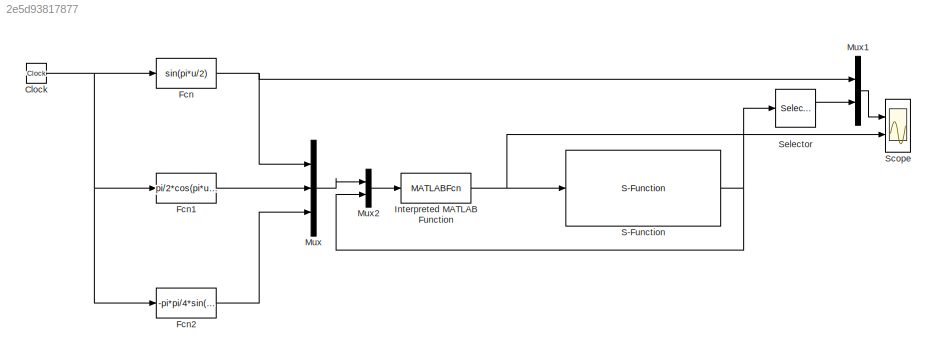
MODEL slx_2e5d93817877
KIND model
CONFIG AbsTol = auto
CONFIG EnableMultiTasking = off
CONFIG FixedStep = auto
CONFIG MaxStep = auto
CONFIG MinStep = auto
CONFIG RelTol = 1e-3
CONFIG SampleTimeConstraint = Unconstrained
CONFIG Solver = VariableStepAuto
CONFIG SolverName = VariableStepAuto
CONFIG StartTime = 0.0
CONFIG StopTime = 10.0
BLOCK [Clock] Clock
BLOCK [Fcn] Fcn
  Expr = sin(pi*u/2)
BLOCK [Fcn] Fcn1
  Expr = pi/2*cos(pi*u/2)
BLOCK [Fcn] Fcn2
  Expr = -pi*pi/4*sin(pi*u/2)
BLOCK [MATLABFcn] Interpreted MATLAB Function
  MATLABFcn = smc1
  Ports = [1, 1]
BLOCK [Mux] Mux
  DisplayOption = bar
  Inputs = 3
  Ports = [3, 1]
BLOCK [Mux] Mux1
  DisplayOption = bar
  Inputs = 2
  Ports = [2, 1]
BLOCK [Mux] Mux2
  DisplayOption = bar
  Inputs = 2
  Ports = [2, 1]
BLOCK [S-Function] S-Function
  EnableBusSupport = off
  FunctionName = dyn_1
  Ports = [1, 1]
  SFcnIsStateOwnerBlock = off
  SFunctionDeploymentMode = off
BLOCK [Scope] Scope
  Floating = off
  NumInputPorts = 2
  Ports = [2]
  ScopeSpecificationString = Simulink.scopes.TimeScopeBlockCfg('CurrentConfiguration', extmgr.ConfigurationSet(extmgr.Configuration('Core','General UI',true),extmgr.Configuration('Core','Source UI',true),extmgr.Configuration('Sources','WiredSimulink',true),extmgr.Configuration('Visuals','Time Domain',true,'SerializedDisplays',{struct('MinYLimReal','-8.14399','MaxYLimReal','35.81147','YLabelReal','','MinYLimMag','0.00000','Max...<+2099ch>
BLOCK [Selector] Selector
  IndexOptions = Index vector (dialog)
  Indices = [1]
  InputPortWidth = 2
  OutputSizes = 1
  Ports = [1, 1]
NET Clock:1 -> Fcn1:1, Fcn2:1, Fcn:1
LINE Fcn1:1 -> Mux:2
LINE Fcn2:1 -> Mux:3
NET Fcn:1 -> Mux1:1, Mux:1
NET Interpreted MATLAB Function:1 -> S-Function:1, Scope:2
LINE Mux1:1 -> Scope:1
LINE Mux2:1 -> Interpreted MATLAB Function:1
LINE Mux:1 -> Mux2:1
NET S-Function:1 -> Mux2:2, Selector:1
LINE Selector:1 -> Mux1:2
note: NET lines group one-source signal fan-out (src -> all destinations, sorted); 1:1 wires keep LINE
